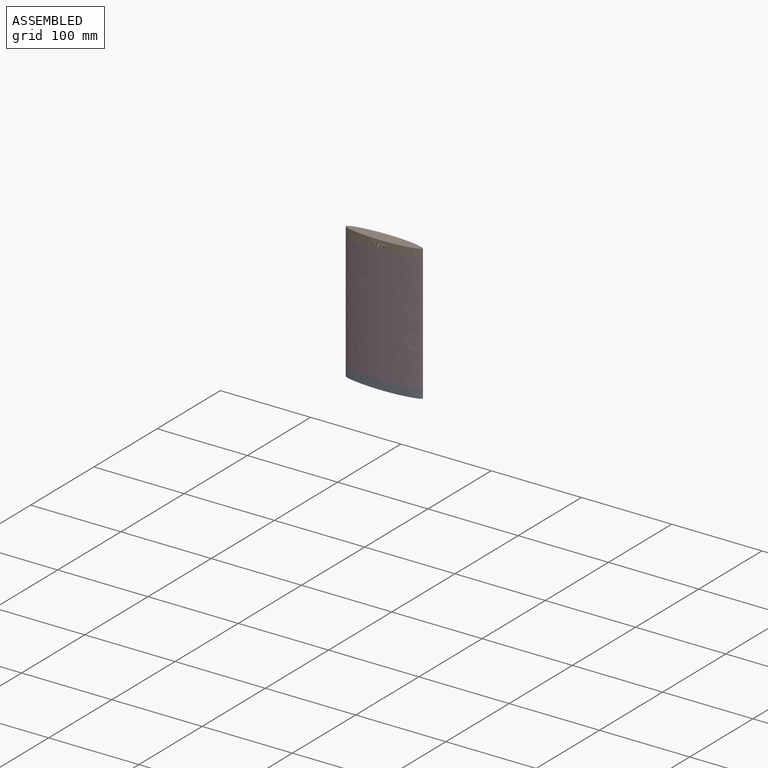
[diagram: assembled view]
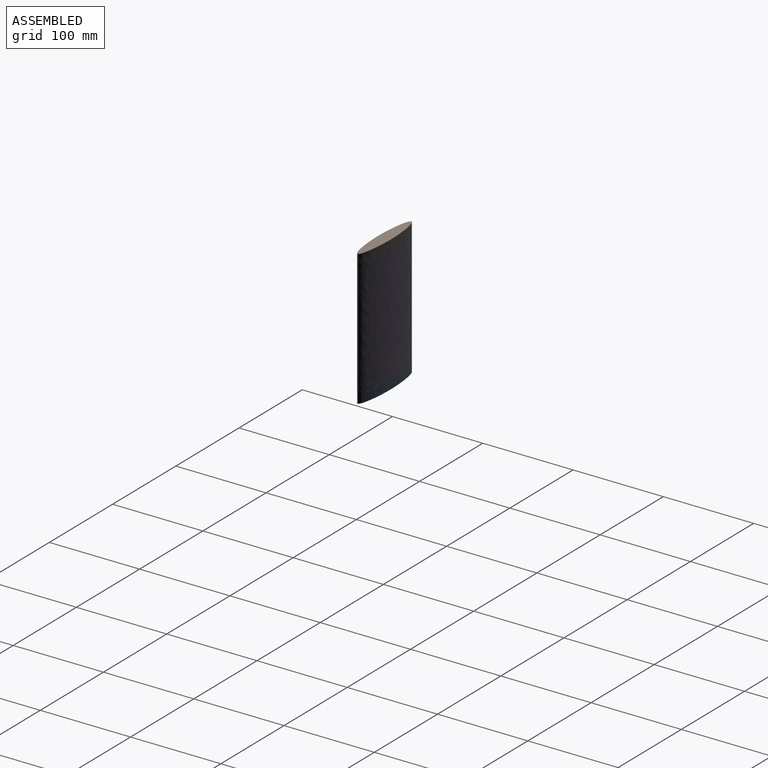
[diagram: assembled view, second angle]
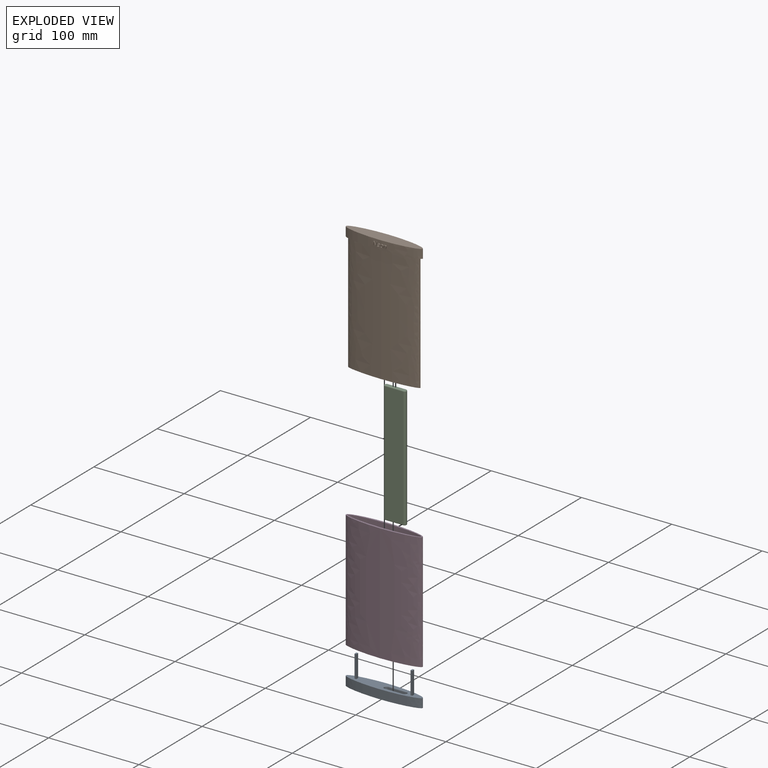
[diagram: exploded view]
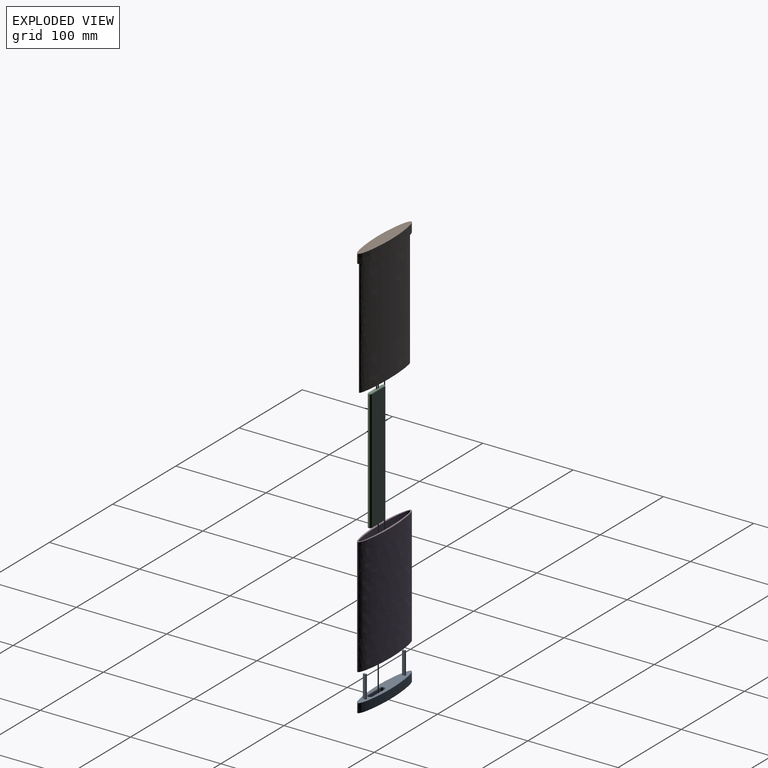
[diagram: exploded view, second angle]
ASSEMBLY  parts=4 mates=3
PART A: 27 faces, bbox 89.4x14x35 mm
  f0: plane 89.43x14mm, normal (0,0,1), area 716.9mm2, adj f1,f2,f9,f10,f11,f12,f17,f18
  f1: extruded ~42.5x14mm, area 878.4mm2, adj f0,f2,f3
  f2: extruded ~42.5x14mm, area 878.4mm2, adj f0,f1,f3
  f3: plane 89.43x14mm, normal (0,0,-1), area 907.4mm2, adj f1,f2
  f4: cylinder r=2.5mm len=5mm, axis (0,0,1), area 23.6mm2, adj f5,f7,f9,f13
  f5: plane 20x3mm, normal (0,1,0), area 60mm2, adj f4,f6,f10,f14
  f6: cylinder r=2.5mm len=5mm, axis (0,0,1), area 23.6mm2, adj f5,f7,f12,f16
  f7: plane 20x3mm, normal (0,-1,0), area 60mm2, adj f4,f6,f11,f15
  f8: plane 23x3mm, normal (0,0,1), area 67.1mm2, adj f13,f14,f15,f16
  f9: torus R=3.5mm, axis (0,0,1), area 14.1mm2, adj f0,f4,f10,f11
  f10: cylinder r=1mm len=20mm, axis (-1,0,0), area 31.4mm2, adj f0,f5,f9,f12
  f11: cylinder r=1mm len=20mm, axis (1,0,0), area 31.4mm2, adj f0,f7,f9,f12
  f12: torus R=3.5mm, axis (0,0,1), area 14.1mm2, adj f0,f6,f10,f11
  f13: torus R=1.5mm, axis (0,0,1), area 10.5mm2, adj f4,f8,f14,f15
  f14: cylinder r=1mm len=20mm, axis (1,0,0), area 31.4mm2, adj f5,f8,f13,f16
  f15: cylinder r=1mm len=20mm, axis (-1,0,0), area 31.4mm2, adj f7,f8,f13,f16
  f16: torus R=1.5mm, axis (0,0,1), area 10.5mm2, adj f6,f8,f14,f15
  f17: plane 25x3mm, normal (1,0,0), area 75mm2, adj f0,f18,f20,f21
  f18: plane 25x2mm, normal (0,1,0), area 50mm2, adj f0,f17,f19,f21
  f19: plane 25x3mm, normal (-1,0,0), area 75mm2, adj f0,f18,f20,f21
  f20: plane 25x2mm, normal (0,-1,0), area 50mm2, adj f0,f17,f19,f21
  f21: plane 3x2mm, normal (0,0,1), area 6mm2, adj f17,f18,f19,f20
  f22: plane 25x2mm, normal (0,-1,0), area 50mm2, adj f0,f23,f25,f26
  f23: plane 25x3mm, normal (1,0,0), area 75mm2, adj f0,f22,f24,f26
  f24: plane 25x2mm, normal (0,1,0), area 50mm2, adj f0,f23,f25,f26
  f25: plane 25x3mm, normal (-1,0,0), area 75mm2, adj f0,f22,f24,f26
  f26: plane 3x2mm, normal (0,0,1), area 6mm2, adj f22,f23,f24,f25
PART B: 299 faces, bbox 89.5x18.5x193.2 mm
  f0: plane 84.17x10mm, normal (0,0,-1), area 478.4mm2, adj f1,f2,f3,f4,f5,f6,f289,f291
  f1: extruded ~130x40mm, area 10623.9mm2, adj f0,f6,f7
  f2: plane 130x20mm, normal (0,1,0), area 2600mm2, adj f0,f3,f5,f11
  f3: cylinder r=2.5mm len=130mm, axis (0,0,-1), area 1021mm2, adj f0,f2,f4,f11
  f4: plane 130x20mm, normal (0,-1,0), area 2600mm2, adj f0,f3,f5,f11
  f5: cylinder r=2.5mm len=130mm, axis (0,0,-1), area 1021mm2, adj f0,f2,f4,f11
  f6: extruded ~130x40mm, area 10623.9mm2, adj f0,f1,f7
  f7: plane 89.43x18.43mm, normal (0,0,-1), area 297.4mm2, adj f1,f6,f9
  f8: plane 89.43x18.43mm, normal (0,0,1), area 907.4mm2, adj f9
  f9: extruded ~85x14mm, area 1726.5mm2, adj f7,f8,f10,f73,f74,f75,f76,f77
  f10: extruded ~2.11x1.01mm, area 1.7mm2, adj f9,f176,f177,f182,f183,f188,f191,f194
  f11: plane 25x5mm, normal (0,0,-1), area 119.6mm2, adj f2,f3,f4,f5
  f12: plane 0.85x0.54mm, normal (0,0,-1), area 0.5mm2, adj f239,f244,f248,f249
  f13: plane 4.21x0.84mm, normal (0.98,0,-0.19), area 3.5mm2, adj f249,f254,f257,f258
  f14: plane 0.93x0.33mm, normal (0,0,1), area 0.3mm2, adj f24,f251,f255,f258,f261
  f15: plane 2.83x0.84mm, normal (-0.98,0,0.19), area 2.4mm2, adj f246,f251,f255,f256
  f16: extruded ~0.85x0.54mm, area 0.5mm2, adj f236,f241,f246,f247
  f17: plane 3.42x1.5mm, normal (0.92,0,0.4), area 3.2mm2, adj f226,f231,f236,f237
  f18: plane 0.91x0.52mm, normal (0,0,1), area 0.5mm2, adj f216,f221,f226,f227
  f19: plane 4.21x0.94mm, normal (-0.98,0,0.19), area 4mm2, adj f207,f211,f216,f217
  f20: plane 0.93x0.33mm, normal (0,0,-1), area 0.3mm2, adj f205,f207,f208,f209
  f21: plane 2.87x0.92mm, normal (0.98,0,-0.19), area 2.6mm2, adj f209,f214,f218,f219
  f22: extruded ~0.9x0.48mm, area 0.4mm2, adj f219,f224,f228,f229
  f23: plane 3.4x1.49mm, normal (-0.92,0,-0.4), area 3.2mm2, adj f229,f234,f238,f239
  f24: plane 4.31x4.21mm, normal (0,-1,0), area 4.4mm2, adj f14,f205,f211,f214,f220,f221,f224,f230
  f25: plane 2.28x0.81mm, normal (0,0,-1), area 1.8mm2, adj f172,f178,f183,f184
  f26: extruded ~0.8x0.56mm, area 0.5mm2, adj f27,f173,f184,f192
  f27: extruded ~0.91x0.8mm, area 0.8mm2, adj f26,f28,f168,f195
  f28: extruded ~1x0.8mm, area 0.9mm2, adj f27,f29,f164,f197
  f29: extruded ~0.91x0.81mm, area 0.8mm2, adj f28,f30,f161,f199
  f30: extruded ~0.82x0.78mm, area 0.8mm2, adj f29,f31,f162,f201
  f31: extruded ~1.13x0.82mm, area 0.9mm2, adj f30,f32,f165,f203
  f32: extruded ~0.98x0.82mm, area 0.9mm2, adj f31,f33,f169,f204
  f33: extruded ~0.98x0.82mm, area 0.9mm2, adj f32,f34,f174,f202
  f34: extruded ~0.85x0.81mm, area 0.7mm2, adj f33,f35,f180,f200
  f35: extruded ~0.8x0.52mm, area 0.6mm2, adj f34,f185,f193,f198
  f36: plane 0.8x0.25mm, normal (0.42,0,0.91), area 0.2mm2, adj f186,f187,f193,f194
  f37: extruded ~0.8x0.34mm, area 0.4mm2, adj f38,f175,f187,f188
  f38: extruded ~0.81x0.55mm, area 0.5mm2, adj f37,f39,f170,f182
  f39: extruded ~0.81x0.63mm, area 0.6mm2, adj f38,f40,f166,f176
  f40: extruded ~0.81x0.64mm, area 0.6mm2, adj f39,f47,f163,f177
  f41: plane 1.88x0.91mm, normal (0,0,1), area 1.7mm2, adj f42,f46,f49,f286
  f42: extruded ~0.91x0.76mm, area 0.8mm2, adj f41,f43,f49,f284
  f43: extruded ~0.91x0.7mm, area 0.7mm2, adj f42,f44,f49,f283
  f44: extruded ~0.9x0.58mm, area 0.6mm2, adj f43,f45,f49,f285
  f45: extruded ~0.9x0.59mm, area 0.6mm2, adj f44,f46,f49,f287
  f46: plane 0.9x0.23mm, normal (-1,0,0.06), area 0.2mm2, adj f41,f45,f49,f288
  f47: extruded ~0.87x0.26mm, area 0.2mm2, adj f40,f167,f177,f178
  f48: plane 3.31x2.91mm, normal (0,-1,0), area 2.9mm2, adj f161,f162,f163,f164,f165,f166,f167,f168
  f49: extruded ~1.89x1.03mm, area 1.4mm2, adj f41,f42,f43,f44,f45,f46
  f50: extruded ~0.97x0.84mm, area 0.9mm2, adj f51,f70,f143,f268
  f51: extruded ~1x0.83mm, area 0.9mm2, adj f50,f52,f145,f266
  f52: extruded ~0.96x0.82mm, area 0.8mm2, adj f51,f53,f147,f264
  f53: extruded ~0.81x0.75mm, area 0.8mm2, adj f52,f54,f149,f262
  f54: extruded ~1.13x0.8mm, area 0.9mm2, adj f53,f55,f150,f263
  f55: extruded ~1x0.8mm, area 0.9mm2, adj f54,f56,f148,f265
  f56: extruded ~0.97x0.81mm, area 0.9mm2, adj f55,f57,f146,f267
  f57: extruded ~0.82x0.77mm, area 0.6mm2, adj f56,f58,f144,f269
  f58: extruded ~0.83x0.57mm, area 0.6mm2, adj f57,f59,f142,f271
  f59: extruded ~0.84x0.74mm, area 0.7mm2, adj f58,f70,f140,f272
  f60: extruded ~0.83x0.75mm, area 0.6mm2, adj f61,f69,f160,f280
  f61: extruded ~0.83x0.59mm, area 0.5mm2, adj f60,f62,f158,f278
  f62: extruded ~0.82x0.34mm, area 0.4mm2, adj f61,f63,f156,f276
  f63: extruded ~0.82x0.52mm, area 0.4mm2, adj f62,f64,f154,f274
  f64: extruded ~0.81x0.58mm, area 0.5mm2, adj f63,f65,f152,f273
  f65: extruded ~0.81x0.71mm, area 0.6mm2, adj f64,f66,f151,f275
  f66: extruded ~0.85x0.81mm, area 0.7mm2, adj f65,f67,f153,f277
  f67: extruded ~0.81x0.66mm, area 0.6mm2, adj f66,f68,f155,f279
  f68: extruded ~0.82x0.68mm, area 0.6mm2, adj f67,f69,f157,f281
  f69: extruded ~0.89x0.83mm, area 1.1mm2, adj f60,f68,f159,f282
  f70: extruded ~0.85x0.84mm, area 0.7mm2, adj f50,f59,f141,f270
  f71: plane 3.31x2.95mm, normal (0,-1,0), area 2.8mm2, adj f262,f263,f264,f265,f266,f267,f268,f269
  f72: extruded ~2.48x1.79mm, area 3.4mm2, adj f151,f152,f153,f154,f155,f156,f157,f158
  f73: plane 1.06x0.4mm, normal (0,0,-1), area 0.4mm2, adj f9,f95,f99,f104,f107
  f74: plane 1.96x1.04mm, normal (0.98,0,-0.19), area 2.1mm2, adj f9,f75,f94,f95
  f75: extruded ~1.04x0.51mm, area 0.5mm2, adj f9,f74,f76,f96
  f76: extruded ~1.04x0.66mm, area 0.7mm2, adj f9,f75,f77,f98
  f77: extruded ~1.03x0.7mm, area 0.8mm2, adj f9,f76,f78,f100
  f78: extruded ~1.01x0.62mm, area 0.6mm2, adj f9,f77,f79,f102
  f79: extruded ~0.99x0.52mm, area 0.7mm2, adj f9,f78,f80,f105,f117
  f80: plane 0.92x0.01mm, normal (0,0,1), area 0mm2, adj f79,f81,f108,f117
  f81: extruded ~0.88x0.34mm, area 0.3mm2, adj f80,f82,f111,f117
  f82: extruded ~0.88x0.13mm, area 0.1mm2, adj f81,f114,f123,f124
  f83: plane 0.87x0.33mm, normal (0,0,1), area 0.3mm2, adj f124,f125,f133,f134
  f84: extruded ~0.86x0.64mm, area 0.6mm2, adj f85,f126,f134,f138
  f85: plane 2.66x0.86mm, normal (-0.98,0,0.19), area 2.3mm2, adj f84,f86,f119,f139
  f86: plane 0.86x0.48mm, normal (0,0,-1), area 0.4mm2, adj f85,f120,f131,f137,f139
  f87: plane 1.81x0.87mm, normal (0.98,0,-0.19), area 1.6mm2, adj f88,f121,f131,f132
  f88: extruded ~0.88x0.81mm, area 0.8mm2, adj f87,f89,f115,f128
  f89: extruded ~0.9x0.69mm, area 0.7mm2, adj f88,f90,f112,f122
  f90: extruded ~0.91x0.56mm, area 0.8mm2, adj f89,f91,f109,f116
  f91: extruded ~0.91x0.47mm, area 0.4mm2, adj f90,f92,f106,f113
  f92: plane 1.9x0.91mm, normal (-0.98,0,0.19), area 1.8mm2, adj f91,f103,f104,f110
  f93: plane 3.24x2.94mm, normal (0,-1,0), area 2.6mm2, adj f94,f96,f98,f99,f100,f102,f103,f105
  f94: cylinder r=0.1mm len=1.98mm, axis (-0.19,0,-0.98), area 0.3mm2, adj f74,f93,f96,f97
  f95: cylinder r=0.1mm len=1.02mm, axis (0,1,0), area 0.1mm2, adj f9,f73,f74,f97
  f96: bspline ~0.69x0.19mm, area 0.1mm2, adj f75,f93,f94,f98
  f97: sphere r=0.1mm, area 0mm2, adj f94,f95,f99
  f98: bspline ~0.81x0.39mm, area 0.1mm2, adj f76,f93,f96,f100
  f99: cylinder r=0.1mm len=0.36mm, axis (-1,0,0), area 0.1mm2, adj f73,f93,f97,f101
  f100: bspline ~1x0.32mm, area 0.1mm2, adj f77,f93,f98,f102
  f101: sphere r=0.1mm, area 0mm2, adj f99,f103,f104
  f102: bspline ~0.77x0.29mm, area 0.1mm2, adj f78,f93,f100,f105
  f103: cylinder r=0.1mm len=1.92mm, axis (0.19,0,0.98), area 0.3mm2, adj f92,f93,f101,f106
  f104: cylinder r=0.1mm len=0.91mm, axis (0,1,0), area 0.2mm2, adj f73,f92,f101,f107
  f105: bspline ~1.18x1.12mm, area 0.1mm2, adj f79,f93,f102,f108
  f106: bspline ~0.61x0.18mm, area 0.1mm2, adj f91,f93,f103,f109
  f107: bspline ~0.39x0.27mm, area 0mm2, adj f9,f73,f104,f110
  f108: cylinder r=0.1mm len=0.18mm, axis (1,0,0), area 0mm2, adj f80,f93,f105,f111
  f109: bspline ~0.81x0.71mm, area 0.1mm2, adj f90,f93,f106,f112
  f110: bspline ~65.66x12.89mm, area 0.3mm2, adj f9,f92,f107,f113
  f111: bspline ~0.8x0.23mm, area 0.1mm2, adj f81,f93,f108,f114
  f112: bspline ~1.09x0.59mm, area 0.1mm2, adj f89,f93,f109,f115
  f113: bspline ~0.59x0.18mm, area 0.1mm2, adj f9,f91,f110,f116
  f114: bspline ~0.24x0.13mm, area 0mm2, adj f82,f93,f111,f118
  f115: bspline ~1.06x0.64mm, area 0.1mm2, adj f88,f93,f112,f121
  f116: bspline ~0.75x0.71mm, area 0.1mm2, adj f9,f90,f113,f122
  f117: bspline ~0.49x0.17mm, area 0mm2, adj f9,f79,f80,f81,f123
  f118: sphere r=0.1mm, area 0mm2, adj f114,f124,f125
  f119: cylinder r=0.1mm len=2.68mm, axis (0.19,0,0.98), area 0.4mm2, adj f85,f93,f120,f126
  f120: cylinder r=0.1mm len=0.48mm, axis (-1,0,0), area 0.1mm2, adj f86,f93,f119,f127
  f121: cylinder r=0.1mm len=1.83mm, axis (-0.19,0,-0.98), area 0.3mm2, adj f87,f93,f115,f127
  f122: bspline ~0.88x0.42mm, area 0.1mm2, adj f9,f89,f116,f128
  f123: bspline ~0.26x0.13mm, area 0mm2, adj f9,f82,f117,f129
  f124: cylinder r=0.1mm len=0.88mm, axis (0,1,0), area 0.1mm2, adj f82,f83,f118,f129
  f125: cylinder r=0.1mm len=0.33mm, axis (1,0,0), area 0.1mm2, adj f83,f93,f118,f130
  f126: bspline ~0.81x0.24mm, area 0.1mm2, adj f84,f93,f119,f130
  f127: sphere r=0.1mm, area 0mm2, adj f120,f121,f131
  f128: bspline ~1.01x0.61mm, area 0.1mm2, adj f9,f88,f122,f132
  f129: bspline ~0.27x0.25mm, area 0mm2, adj f9,f123,f124,f133
  f130: sphere r=0.1mm, area 0mm2, adj f125,f126,f134
  f131: cylinder r=0.1mm len=0.86mm, axis (0,1,0), area 0.1mm2, adj f86,f87,f127,f135
  f132: bspline ~37.88x7.47mm, area 0.3mm2, adj f9,f87,f128,f135
  f133: bspline ~11.75x0.34mm, area 0.1mm2, adj f9,f83,f129,f136
  f134: cylinder r=0.1mm len=0.86mm, axis (0,1,0), area 0.1mm2, adj f83,f84,f130,f136
  f135: bspline ~0.24x0.21mm, area 0mm2, adj f9,f131,f132,f137
  f136: bspline ~0.23x0.22mm, area 0mm2, adj f9,f133,f134,f138
  f137: bspline ~17.96x0.52mm, area 0.1mm2, adj f9,f86,f135,f139
  f138: bspline ~0.82x0.24mm, area 0.1mm2, adj f9,f84,f136,f139
  f139: bspline ~85.8x16.84mm, area 0.4mm2, adj f9,f85,f86,f137,f138
  f140: bspline ~0.99x0.52mm, area 0.1mm2, adj f9,f59,f141,f142
  f141: bspline ~1.07x0.23mm, area 0.1mm2, adj f9,f70,f140,f143
  f142: bspline ~0.76x0.67mm, area 0.1mm2, adj f9,f58,f140,f144
  f143: bspline ~1.27x0.58mm, area 0.2mm2, adj f9,f50,f141,f145
  f144: bspline ~0.99x0.31mm, area 0.1mm2, adj f9,f57,f142,f146
  f145: bspline ~1.63x0.59mm, area 0.2mm2, adj f9,f51,f143,f147
  f146: bspline ~1.55x0.61mm, area 0.2mm2, adj f9,f56,f144,f148
  f147: bspline ~1.23x0.46mm, area 0.2mm2, adj f9,f52,f145,f149
  f148: bspline ~1.63x0.6mm, area 0.2mm2, adj f9,f55,f146,f150
  f149: bspline ~1.03x0.81mm, area 0.2mm2, adj f9,f53,f147,f150
  f150: bspline ~1.44x0.36mm, area 0.2mm2, adj f9,f54,f148,f149
  f151: bspline ~0.9x0.3mm, area 0.1mm2, adj f65,f72,f152,f153
  f152: bspline ~0.75x0.45mm, area 0.1mm2, adj f64,f72,f151,f154
  f153: bspline ~1.05x0.28mm, area 0.1mm2, adj f66,f72,f151,f155
  f154: bspline ~0.66x0.21mm, area 0.1mm2, adj f63,f72,f152,f156
  f155: bspline ~0.84x0.6mm, area 0.1mm2, adj f67,f72,f153,f157
  f156: bspline ~0.49x0.46mm, area 0.1mm2, adj f62,f72,f154,f158
  f157: bspline ~0.85x0.32mm, area 0.1mm2, adj f68,f72,f155,f159
  f158: bspline ~0.75x0.4mm, area 0.1mm2, adj f61,f72,f156,f160
  f159: bspline ~1.23x0.86mm, area 0.2mm2, adj f69,f72,f157,f160
  f160: bspline ~0.92x0.24mm, area 0.1mm2, adj f60,f72,f158,f159
  f161: bspline ~1.1x0.46mm, area 0.1mm2, adj f29,f48,f162,f164
  f162: bspline ~1.02x0.8mm, area 0.2mm2, adj f30,f48,f161,f165
  f163: bspline ~0.99x0.33mm, area 0.1mm2, adj f40,f48,f166,f167
  f164: bspline ~1.25x0.43mm, area 0.2mm2, adj f28,f48,f161,f168
  f165: bspline ~1.4x0.34mm, area 0.2mm2, adj f31,f48,f162,f169
  f166: bspline ~0.84x0.41mm, area 0.1mm2, adj f39,f48,f163,f170
  f167: bspline ~0.42x0.13mm, area 0mm2, adj f47,f48,f163,f171
  f168: bspline ~1.36x0.55mm, area 0.2mm2, adj f27,f48,f164,f173
  f169: bspline ~1.22x0.56mm, area 0.2mm2, adj f32,f48,f165,f174
  f170: bspline ~0.74x0.26mm, area 0.1mm2, adj f38,f48,f166,f175
  f171: torus R=0.2mm, axis (0,-1,0), area 0mm2, adj f48,f167,f172,f178
  f172: cylinder r=0.1mm len=2.28mm, axis (-1,0,0), area 0.4mm2, adj f25,f48,f171,f179
  f173: bspline ~0.79x0.17mm, area 0.1mm2, adj f26,f48,f168,f179
  f174: bspline ~1.51x0.56mm, area 0.2mm2, adj f33,f48,f169,f180
  f175: bspline ~0.58x0.54mm, area 0.1mm2, adj f37,f48,f170,f181
  f176: bspline ~0.77x0.37mm, area 0.1mm2, adj f10,f39,f177,f182
  f177: bspline ~1.67x0.39mm, area 0.1mm2, adj f10,f40,f47,f176,f178,f183
  f178: cylinder r=0.1mm len=0.89mm, axis (0,1,0), area 0.1mm2, adj f25,f47,f171,f177,f183
  f179: sphere r=0.1mm, area 0mm2, adj f172,f173,f184
  f180: bspline ~1.05x0.36mm, area 0.1mm2, adj f34,f48,f174,f185
  f181: sphere r=0.1mm, area 0mm2, adj f175,f186,f187
  f182: bspline ~0.69x0.25mm, area 0.1mm2, adj f10,f38,f176,f188
  f183: bspline ~10.11x0.18mm, area 0.4mm2, adj f9,f10,f25,f177,f178,f189
  f184: cylinder r=0.1mm len=0.8mm, axis (0,1,0), area 0.1mm2, adj f25,f26,f179,f189
  f185: bspline ~0.78x0.7mm, area 0.1mm2, adj f35,f48,f180,f190
  f186: cylinder r=0.1mm len=0.29mm, axis (0.91,0,-0.42), area 0mm2, adj f36,f48,f181,f190
  f187: cylinder r=0.1mm len=0.8mm, axis (0,1,0), area 0.1mm2, adj f36,f37,f181,f191
  f188: bspline ~0.54x0.51mm, area 0.1mm2, adj f10,f37,f182,f191
  f189: bspline ~0.24x0.2mm, area 0mm2, adj f9,f183,f184,f192
  f190: sphere r=0.1mm, area 0mm2, adj f185,f186,f193
  f191: bspline ~0.3x0.17mm, area 0mm2, adj f10,f187,f188,f194
  f192: bspline ~0.76x0.17mm, area 0.1mm2, adj f9,f26,f189,f195
  f193: cylinder r=0.1mm len=0.8mm, axis (0,1,0), area 0.1mm2, adj f35,f36,f190,f196
  f194: bspline ~17.24x7.95mm, area 0mm2, adj f10,f36,f191,f196
  f195: bspline ~1.18x0.58mm, area 0.2mm2, adj f9,f27,f192,f197
  f196: bspline ~0.34x0.18mm, area 0mm2, adj f9,f10,f193,f194,f198
  f197: bspline ~1.44x0.57mm, area 0.2mm2, adj f9,f28,f195,f199
  f198: bspline ~0.86x0.79mm, area 0.1mm2, adj f9,f35,f196,f200
  f199: bspline ~1.16x0.48mm, area 0.2mm2, adj f9,f29,f197,f201
  f200: bspline ~1.1x0.37mm, area 0.1mm2, adj f9,f34,f198,f202
  f201: bspline ~1.06x0.83mm, area 0.2mm2, adj f9,f30,f199,f203
  f202: bspline ~1.58x0.59mm, area 0.2mm2, adj f9,f33,f200,f204
  f203: bspline ~1.43x0.34mm, area 0.2mm2, adj f9,f31,f201,f204
  f204: bspline ~1.58x0.59mm, area 0.2mm2, adj f9,f32,f202,f203
  f205: cylinder r=0.1mm len=0.33mm, axis (-1,0,0), area 0.1mm2, adj f20,f24,f206,f210
  f206: sphere r=0.1mm, area 0mm2, adj f205,f207,f211
  f207: cylinder r=0.1mm len=0.94mm, axis (0,1,0), area 0.2mm2, adj f19,f20,f206,f212
  f208: bspline ~10.26x0.44mm, area 0.1mm2, adj f9,f20,f212,f213
  f209: cylinder r=0.1mm len=0.92mm, axis (0,1,0), area 0.1mm2, adj f20,f21,f210,f213
  f210: sphere r=0.1mm, area 0mm2, adj f205,f209,f214
  f211: cylinder r=0.1mm len=4.22mm, axis (0.19,0,0.98), area 0.7mm2, adj f19,f24,f206,f215
  f212: bspline ~0.27x0.25mm, area 0mm2, adj f9,f207,f208,f217
  f213: bspline ~0.24x0.21mm, area 0mm2, adj f9,f208,f209,f218
  f214: cylinder r=0.1mm len=2.89mm, axis (-0.19,0,-0.98), area 0.5mm2, adj f21,f24,f210,f220
  f215: sphere r=0.1mm, area 0mm2, adj f211,f216,f221
  f216: cylinder r=0.1mm len=0.91mm, axis (0,1,0), area 0.1mm2, adj f18,f19,f215,f222
  f217: bspline ~57.22x11.17mm, area 0.7mm2, adj f9,f19,f212,f222
  f218: bspline ~57.24x11.09mm, area 0.5mm2, adj f9,f21,f213,f223
  f219: cylinder r=0.1mm len=0.9mm, axis (0,1,0), area 0mm2, adj f21,f22,f220,f223
  f220: torus R=0.2mm, axis (0,-1,0), area 0mm2, adj f24,f214,f219,f224
  f221: cylinder r=0.1mm len=0.52mm, axis (1,0,0), area 0.1mm2, adj f18,f24,f215,f225
  f222: bspline ~0.24x0.21mm, area 0mm2, adj f9,f216,f217,f227
  f223: sphere r=0.1mm, area 0mm2, adj f218,f219,f228
  f224: bspline ~0.73x0.22mm, area 0.1mm2, adj f22,f24,f220,f230
  f225: sphere r=0.1mm, area 0mm2, adj f221,f226,f231
  f226: cylinder r=0.1mm len=0.89mm, axis (0,1,0), area 0.1mm2, adj f17,f18,f225,f232
  f227: bspline ~9.65x0.4mm, area 0.1mm2, adj f9,f18,f222,f232
  f228: bspline ~0.81x0.24mm, area 0.1mm2, adj f9,f22,f223,f233
  f229: cylinder r=0.1mm len=0.89mm, axis (0,1,0), area 0.2mm2, adj f22,f23,f230,f233
  f230: torus R=0.2mm, axis (0,-1,0), area 0.1mm2, adj f24,f224,f229,f234
  f231: cylinder r=0.1mm len=3.46mm, axis (0.4,0,-0.92), area 0.6mm2, adj f17,f24,f225,f235
  f232: bspline ~0.23x0.17mm, area 0mm2, adj f9,f226,f227,f237
  f233: sphere r=0.1mm, area 0mm2, adj f228,f229,f238
  f234: cylinder r=0.1mm len=3.44mm, axis (-0.4,0,0.92), area 0.6mm2, adj f23,f24,f230,f240
  f235: torus R=0.2mm, axis (0,-1,0), area 0.1mm2, adj f24,f231,f236,f241
  f236: cylinder r=0.1mm len=0.85mm, axis (0,1,0), area 0.2mm2, adj f16,f17,f235,f242
  f237: bspline ~40.1x17.69mm, area 0.6mm2, adj f9,f17,f232,f242
  f238: bspline ~26.76x11.81mm, area 0.6mm2, adj f9,f23,f233,f243
  f239: cylinder r=0.1mm len=0.85mm, axis (0,1,0), area 0.1mm2, adj f12,f23,f240,f243
  f240: sphere r=0.1mm, area 0mm2, adj f234,f239,f244
  f241: bspline ~0.81x0.23mm, area 0.1mm2, adj f16,f24,f235,f245
  f242: sphere r=0.1mm, area 0mm2, adj f236,f237,f247
  f243: bspline ~0.23x0.17mm, area 0mm2, adj f9,f238,f239,f248
  f244: cylinder r=0.1mm len=0.54mm, axis (-1,0,0), area 0.1mm2, adj f12,f24,f240,f250
  f245: torus R=0.2mm, axis (0,-1,0), area 0mm2, adj f24,f241,f246,f251
  f246: cylinder r=0.1mm len=0.84mm, axis (0,1,0), area 0mm2, adj f15,f16,f245,f252
  f247: bspline ~0.88x0.24mm, area 0.1mm2, adj f9,f16,f242,f252
  f248: bspline ~15.28x0.31mm, area 0.1mm2, adj f9,f12,f243,f253
  f249: cylinder r=0.1mm len=0.84mm, axis (0,1,0), area 0.1mm2, adj f12,f13,f250,f253
  f250: sphere r=0.1mm, area 0mm2, adj f244,f249,f254
  f251: cylinder r=0.1mm len=2.95mm, axis (0.19,0,0.98), area 0.5mm2, adj f14,f15,f24,f245,f255
  f252: sphere r=0.1mm, area 0mm2, adj f246,f247,f256
  f253: bspline ~0.24x0.21mm, area 0mm2, adj f9,f248,f249,f257
  f254: cylinder r=0.1mm len=4.32mm, axis (-0.19,0,-0.98), area 0.7mm2, adj f13,f24,f250,f258
  f255: cylinder r=0.1mm len=0.93mm, axis (0,1,0), area 0.1mm2, adj f14,f15,f251,f259
  f256: bspline ~85.81x16.79mm, area 0.4mm2, adj f9,f15,f252,f259
  f257: bspline ~85.83x16.72mm, area 0.7mm2, adj f9,f13,f253,f260
  f258: cylinder r=0.1mm len=0.92mm, axis (0,1,0), area 0.2mm2, adj f13,f14,f24,f254,f260
  f259: bspline ~0.24x0.21mm, area 0mm2, adj f9,f255,f256,f261
  f260: bspline ~0.27x0.25mm, area 0mm2, adj f9,f257,f258,f261
  f261: bspline ~18.53x0.48mm, area 0.1mm2, adj f9,f14,f259,f260
  f262: bspline ~0.99x0.78mm, area 0.2mm2, adj f53,f71,f263,f264
  f263: bspline ~1.41x0.35mm, area 0.2mm2, adj f54,f71,f262,f265
  f264: bspline ~1.18x0.45mm, area 0.2mm2, adj f52,f71,f262,f266
  f265: bspline ~1.56x0.57mm, area 0.2mm2, adj f55,f71,f263,f267
  f266: bspline ~1.56x0.56mm, area 0.2mm2, adj f51,f71,f264,f268
  f267: bspline ~1.48x0.57mm, area 0.2mm2, adj f56,f71,f265,f269
  f268: bspline ~1.48x0.55mm, area 0.2mm2, adj f50,f71,f266,f270
  f269: bspline ~0.95x0.31mm, area 0.1mm2, adj f57,f71,f267,f271
  f270: bspline ~1.04x0.23mm, area 0.1mm2, adj f70,f71,f268,f272
  f271: bspline ~0.73x0.64mm, area 0.1mm2, adj f58,f71,f269,f272
  f272: bspline ~0.96x0.51mm, area 0.1mm2, adj f59,f71,f270,f271
  f273: bspline ~0.83x0.49mm, area 0.1mm2, adj f64,f71,f274,f275
  f274: bspline ~0.71x0.22mm, area 0.1mm2, adj f63,f71,f273,f276
  f275: bspline ~0.96x0.32mm, area 0.1mm2, adj f65,f71,f273,f277
  f276: bspline ~0.53x0.49mm, area 0.1mm2, adj f62,f71,f274,f278
  f277: bspline ~1.08x0.29mm, area 0.1mm2, adj f66,f71,f275,f279
  f278: bspline ~0.78x0.41mm, area 0.1mm2, adj f61,f71,f276,f280
  f279: bspline ~0.88x0.63mm, area 0.1mm2, adj f67,f71,f277,f281
  f280: bspline ~1.04x0.25mm, area 0.1mm2, adj f60,f71,f278,f282
  f281: bspline ~0.92x0.34mm, area 0.1mm2, adj f68,f71,f279,f282
  f282: bspline ~1.33x1.21mm, area 0.2mm2, adj f69,f71,f280,f281
  f283: bspline ~0.94x0.39mm, area 0.1mm2, adj f43,f48,f284,f285
  f284: bspline ~1.24x0.72mm, area 0.2mm2, adj f42,f48,f283,f286
  f285: bspline ~0.78x0.38mm, area 0.1mm2, adj f44,f48,f283,f287
  f286: cylinder r=0.1mm len=2.1mm, axis (1,0,0), area 0.3mm2, adj f41,f48,f284,f288
  f287: bspline ~0.86x0.4mm, area 0.1mm2, adj f45,f48,f285,f288
  f288: cylinder r=0.1mm len=0.33mm, axis (0.06,0,1), area 0mm2, adj f46,f48,f286,f287
  f289: plane 25x3mm, normal (-1,0,0), area 75mm2, adj f0,f290,f292,f293
  f290: plane 3x2mm, normal (0,0,-1), area 6mm2, adj f289,f291,f292,f293
  f291: plane 25x3mm, normal (1,0,0), area 75mm2, adj f0,f290,f292,f293
  f292: plane 25x2mm, normal (0,-1,0), area 50mm2, adj f0,f289,f290,f291
  f293: plane 25x2mm, normal (0,1,0), area 50mm2, adj f0,f289,f290,f291
  f294: plane 3x2mm, normal (0,0,-1), area 6mm2, adj f295,f296,f297,f298
  f295: plane 25x3mm, normal (1,0,0), area 75mm2, adj f0,f294,f297,f298
  f296: plane 25x3mm, normal (-1,0,0), area 75mm2, adj f0,f294,f297,f298
  f297: plane 25x2mm, normal (0,-1,0), area 50mm2, adj f0,f294,f295,f296
  f298: plane 25x2mm, normal (0,1,0), area 50mm2, adj f0,f294,f295,f296
PART C: 14 faces, bbox 24.9x4.9x135 mm
  f0: cylinder r=2.25mm len=133mm, axis (0,0,-1), area 940.1mm2, adj f1,f3,f6,f10
  f1: plane 133x20mm, normal (0,-1,0), area 2660mm2, adj f0,f2,f7,f11
  f2: cylinder r=2.25mm len=133mm, axis (0,0,-1), area 940.1mm2, adj f1,f3,f9,f13
  f3: plane 133x20mm, normal (0,1,0), area 2660mm2, adj f0,f2,f8,f12
  f4: plane 22.5x2.5mm, normal (0,0,1), area 54.9mm2, adj f10,f11,f12,f13
  f5: plane 22.5x2.5mm, normal (0,0,-1), area 54.9mm2, adj f6,f7,f8,f9
  f6: torus R=1.25mm, axis (0,0,1), area 9.3mm2, adj f0,f5,f7,f8
  f7: cylinder r=1mm len=20mm, axis (1,0,0), area 31.4mm2, adj f1,f5,f6,f9
  f8: cylinder r=1mm len=20mm, axis (-1,0,0), area 31.4mm2, adj f3,f5,f6,f9
  f9: torus R=1.25mm, axis (0,0,1), area 9.3mm2, adj f2,f5,f7,f8
  f10: torus R=1.25mm, axis (0,0,1), area 9.3mm2, adj f0,f4,f11,f12
  f11: cylinder r=1mm len=20mm, axis (-1,0,0), area 31.4mm2, adj f1,f4,f10,f13
  f12: cylinder r=1mm len=20mm, axis (1,0,0), area 31.4mm2, adj f3,f4,f10,f13
  f13: torus R=1.25mm, axis (0,0,1), area 9.3mm2, adj f2,f4,f11,f12
PART D: 5 faces, bbox 89.4x18.4x130 mm
  f0: extruded ~130x40.5mm, area 10752.3mm2, adj f1,f3,f4
  f1: extruded ~130x40.5mm, area 10752.3mm2, adj f0,f3,f4
  f2: extruded ~130x85mm, area 22915.6mm2, adj f3,f4
  f3: plane 89.43x18.43mm, normal (0,0,1), area 289.8mm2, adj f0,f1,f2
  f4: plane 89.43x18.43mm, normal (0,0,-1), area 289.8mm2, adj f0,f1,f2
PLACE A t=(1.97,42.62,-18.55)mm
PLACE B t=(1.97,42.62,56.45)mm fixed
PLACE C t=(-21.65,1.62,-13.55)mm
PLACE D rot(axis=(0,0,1),180deg) t=(1.97,42.62,-8.55)mm
MATE slider D.f3 <-> B.f7  axis (0,0,1) through (1.97,49.62,121.45)mm
MATE slider C.f4 <-> B.f11  axis (0,0,1) through (14.47,42.62,121.45)mm
MATE slider C.f5 <-> A.f8  axis (0,0,-1) through (14.47,42.62,-13.55)mm
